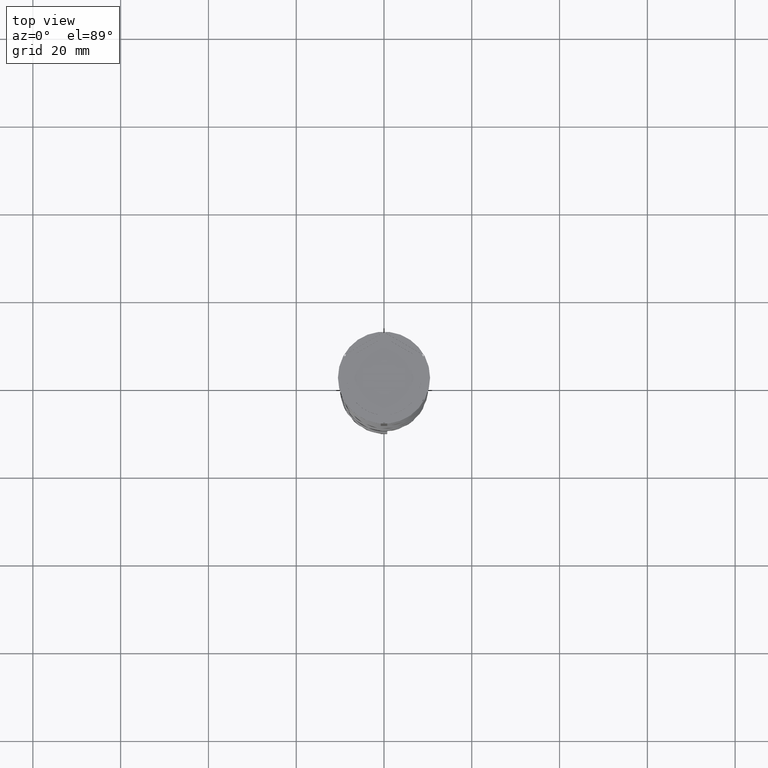
[diagram: clean part render]
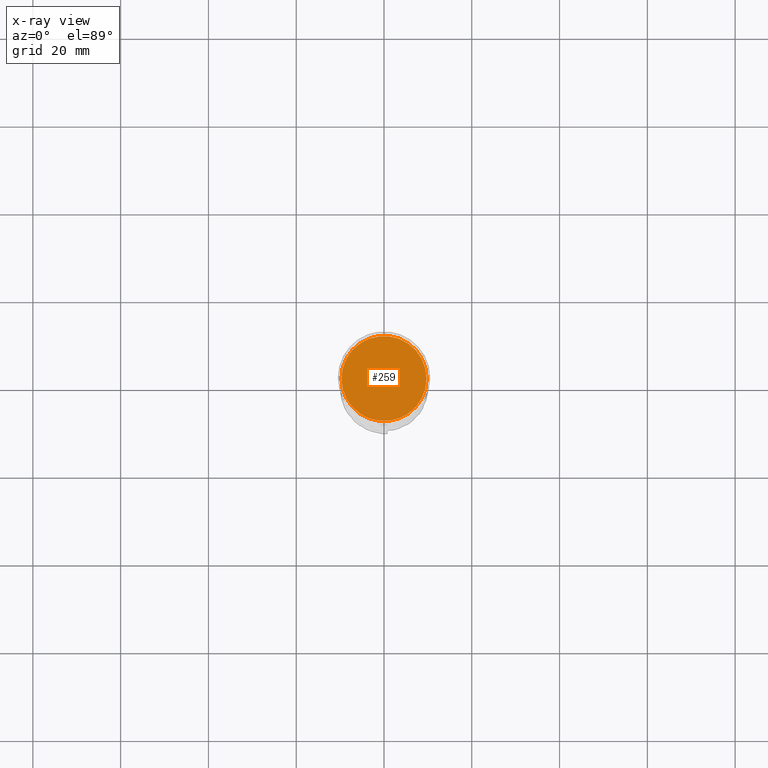
[diagram: x-ray — body ghosted, one internal face saturated and labeled with its STEP entity id]
A machine part, top view, then the same camera in x-ray: the body is ghosted and one INTERNAL B-rep face — a face not visible from any outside direction — is saturated and labeled: STEP entity #259.
In plain terms, the highlighted planar face has unit normal (0, 0, -1).
Its self-contained STEP definition (entity closure, byte-faithful):
#47 = VERTEX_POINT ( 'NONE', #2753 ) ;
#82 = DIRECTION ( 'NONE',  ( 0.000000000000000000, 0.000000000000000000, -1.000000000000000000 ) ) ;
#259 = ADVANCED_FACE ( 'NONE', ( #1604 ), #2194, .F. ) ;
#265 = EDGE_CURVE ( 'NONE', #47, #2702, #1191, .T. ) ;
#302 = CIRCLE ( 'NONE', #744, 9.700000000000002842 ) ;
#325 = DIRECTION ( 'NONE',  ( -0.000000000000000000, -0.000000000000000000, 1.000000000000000000 ) ) ;
#372 = AXIS2_PLACEMENT_3D ( 'NONE', #2522, #82, #3159 ) ;
#402 = DIRECTION ( 'NONE',  ( -0.000000000000000000, -0.000000000000000000, 1.000000000000000000 ) ) ;
#592 = EDGE_CURVE ( 'NONE', #2702, #47, #302, .T. ) ;
#744 = AXIS2_PLACEMENT_3D ( 'NONE', #3322, #325, #1845 ) ;
#1010 = ORIENTED_EDGE ( 'NONE', *, *, #592, .T. ) ;
#1191 = CIRCLE ( 'NONE', #1836, 9.700000000000002842 ) ;
#1604 = FACE_OUTER_BOUND ( 'NONE', #3299, .T. ) ;
#1836 = AXIS2_PLACEMENT_3D ( 'NONE', #2825, #402, #3768 ) ;
#1845 = DIRECTION ( 'NONE',  ( -1.000000000000000000, 0.000000000000000000, 0.000000000000000000 ) ) ;
#2194 = PLANE ( 'NONE',  #372 ) ;
#2522 = CARTESIAN_POINT ( 'NONE',  ( 0.000000000000000000, 0.000000000000000000, -12.00000000000000000 ) ) ;
#2702 = VERTEX_POINT ( 'NONE', #2894 ) ;
#2753 = CARTESIAN_POINT ( 'NONE',  ( -9.700000000000002842, 0.000000000000000000, -12.00000000000000000 ) ) ;
#2825 = CARTESIAN_POINT ( 'NONE',  ( 0.000000000000000000, 0.000000000000000000, -12.00000000000000000 ) ) ;
#2894 = CARTESIAN_POINT ( 'NONE',  ( 9.700000000000002842, 1.206277097160143024E-15, -12.00000000000000000 ) ) ;
#2958 = ORIENTED_EDGE ( 'NONE', *, *, #265, .T. ) ;
#3159 = DIRECTION ( 'NONE',  ( -1.000000000000000000, 0.000000000000000000, -0.000000000000000000 ) ) ;
#3299 = EDGE_LOOP ( 'NONE', ( #2958, #1010 ) ) ;
#3322 = CARTESIAN_POINT ( 'NONE',  ( 0.000000000000000000, 0.000000000000000000, -12.00000000000000000 ) ) ;
#3768 = DIRECTION ( 'NONE',  ( -1.000000000000000000, 0.000000000000000000, 0.000000000000000000 ) ) ;